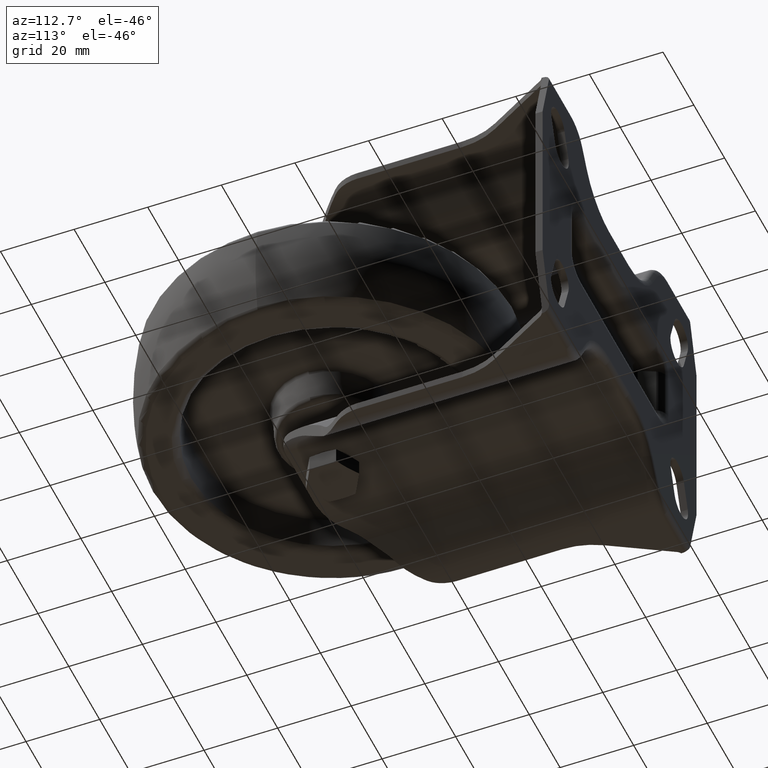
[diagram: clean part render]
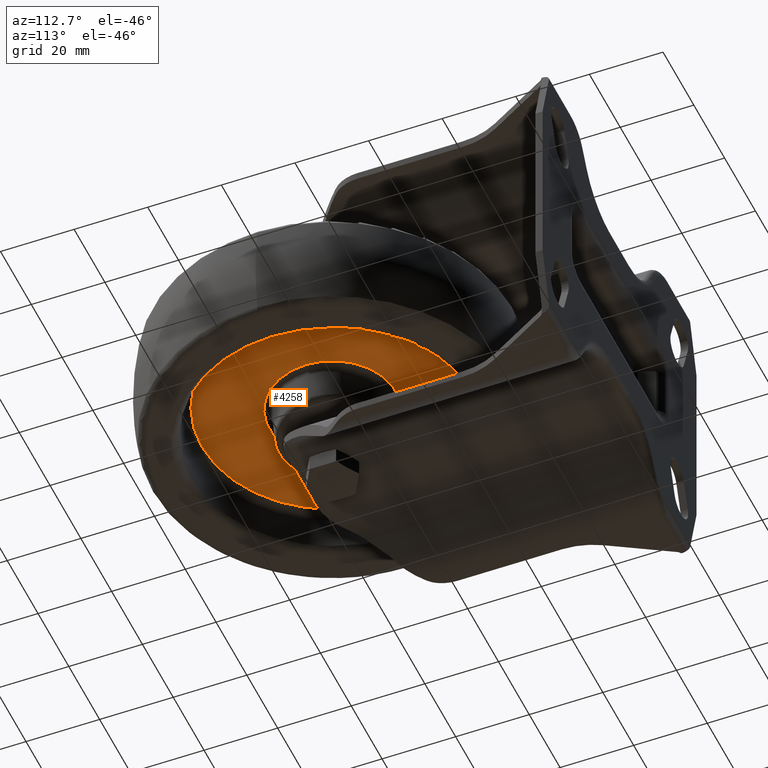
[diagram: same view with one face highlighted and labeled with its STEP entity id]
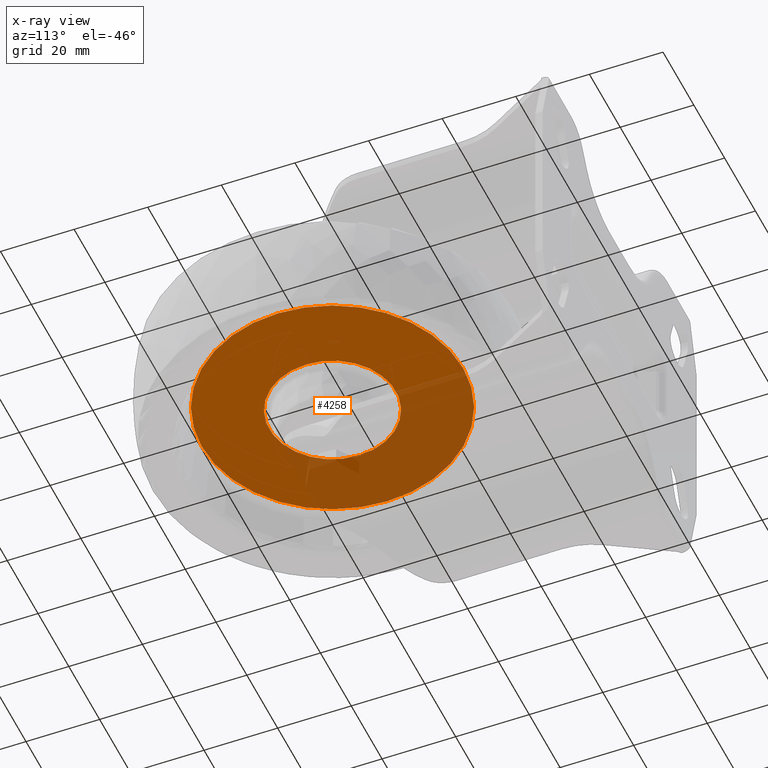
[diagram: x-ray of the same camera — body ghosted, the highlighted face saturated]
A machine part, auxiliary view. The second image highlights one B-rep face of the part: STEP entity #4258.
The next image is the same camera in x-ray: the body ghosted, the highlighted face saturated — about 35% of this face is hidden behind the body in this view.
In plain terms, the highlighted conical surface has half-angle 87 deg.
Its self-contained STEP definition (entity closure, byte-faithful):
#187=CONICAL_SURFACE('',#4735,26.3533888425373,1.51843644923507);
#530=FACE_OUTER_BOUND('',#789,.T.);
#789=EDGE_LOOP('',(#3633,#3634,#3635,#3636,#3637,#3638));
#1072=LINE('',#7461,#1338);
#1338=VECTOR('',#5927,26.3533888425373);
#1521=CIRCLE('',#4733,17.206507021163);
#1522=CIRCLE('',#4734,17.206507021163);
#1523=CIRCLE('',#4736,35.5002706639117);
#1524=CIRCLE('',#4737,35.5002706639117);
#1901=VERTEX_POINT('',#7451);
#1902=VERTEX_POINT('',#7453);
#1903=VERTEX_POINT('',#7457);
#1904=VERTEX_POINT('',#7458);
#2483=EDGE_CURVE('',#1901,#1902,#1521,.T.);
#2484=EDGE_CURVE('',#1902,#1901,#1522,.T.);
#2485=EDGE_CURVE('',#1903,#1904,#1523,.T.);
#2486=EDGE_CURVE('',#1904,#1903,#1524,.T.);
#2487=EDGE_CURVE('',#1903,#1902,#1072,.T.);
#3633=ORIENTED_EDGE('',*,*,#2485,.T.);
#3634=ORIENTED_EDGE('',*,*,#2486,.T.);
#3635=ORIENTED_EDGE('',*,*,#2487,.T.);
#3636=ORIENTED_EDGE('',*,*,#2483,.F.);
#3637=ORIENTED_EDGE('',*,*,#2484,.F.);
#3638=ORIENTED_EDGE('',*,*,#2487,.F.);
#4258=ADVANCED_FACE('',(#530),#187,.T.);
#4733=AXIS2_PLACEMENT_3D('',#7454,#5917,#5918);
#4734=AXIS2_PLACEMENT_3D('',#7455,#5919,#5920);
#4735=AXIS2_PLACEMENT_3D('',#7456,#5921,#5922);
#4736=AXIS2_PLACEMENT_3D('',#7459,#5923,#5924);
#4737=AXIS2_PLACEMENT_3D('',#7460,#5925,#5926);
#5917=DIRECTION('center_axis',(0.,0.,-1.));
#5918=DIRECTION('ref_axis',(1.,0.,0.));
#5919=DIRECTION('center_axis',(0.,0.,-1.));
#5920=DIRECTION('ref_axis',(1.,0.,0.));
#5921=DIRECTION('center_axis',(0.,0.,1.));
#5922=DIRECTION('ref_axis',(1.,0.,0.));
#5923=DIRECTION('center_axis',(0.,0.,-1.));
#5924=DIRECTION('ref_axis',(1.,0.,0.));
#5925=DIRECTION('center_axis',(0.,0.,-1.));
#5926=DIRECTION('ref_axis',(1.,0.,0.));
#5927=DIRECTION('',(0.998629534754574,1.2229684632712E-16,-0.0523359562429404));
#7451=CARTESIAN_POINT('',(17.206507021163,-2.10718937479737E-15,-3.81824517780279));
#7453=CARTESIAN_POINT('',(-17.206507021163,2.10711978252056E-15,-3.81824517780279));
#7454=CARTESIAN_POINT('Origin',(0.,0.,-3.81824517780279));
#7455=CARTESIAN_POINT('Origin',(0.,0.,-3.81824517780279));
#7456=CARTESIAN_POINT('Origin',(0.,0.,-3.33887741418014));
#7457=CARTESIAN_POINT('',(-35.5002706639117,-4.34738570174404E-15,-2.85950965055749));
#7458=CARTESIAN_POINT('',(35.5002706639117,-4.34752928374242E-15,-2.85950965055749));
#7459=CARTESIAN_POINT('Origin',(0.,0.,-2.85950965055749));
#7460=CARTESIAN_POINT('Origin',(0.,0.,-2.85950965055749));
#7461=CARTESIAN_POINT('',(-26.3533888425373,-3.22735932926989E-15,-3.33887741418014));